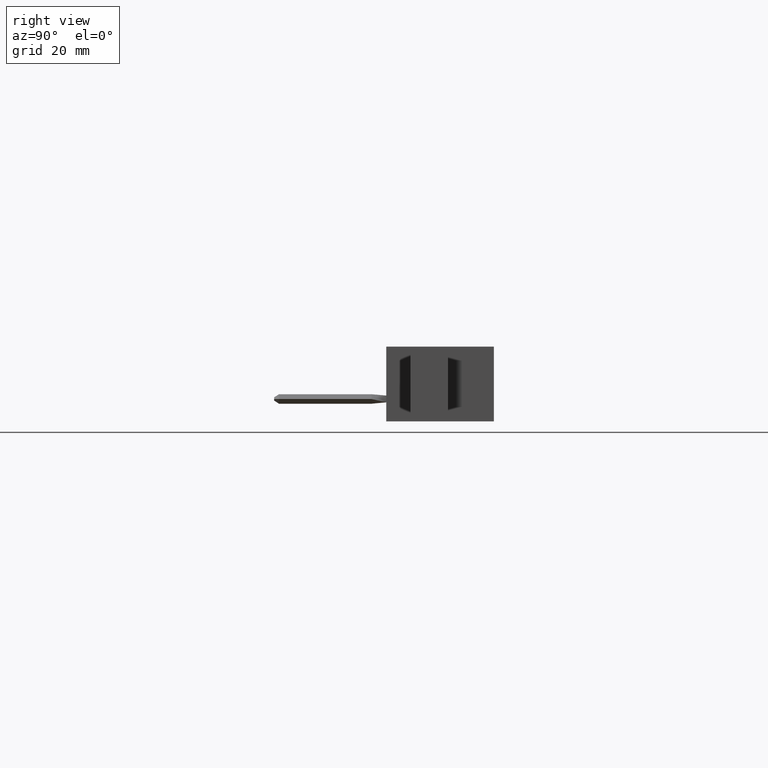
[diagram: clean part render]
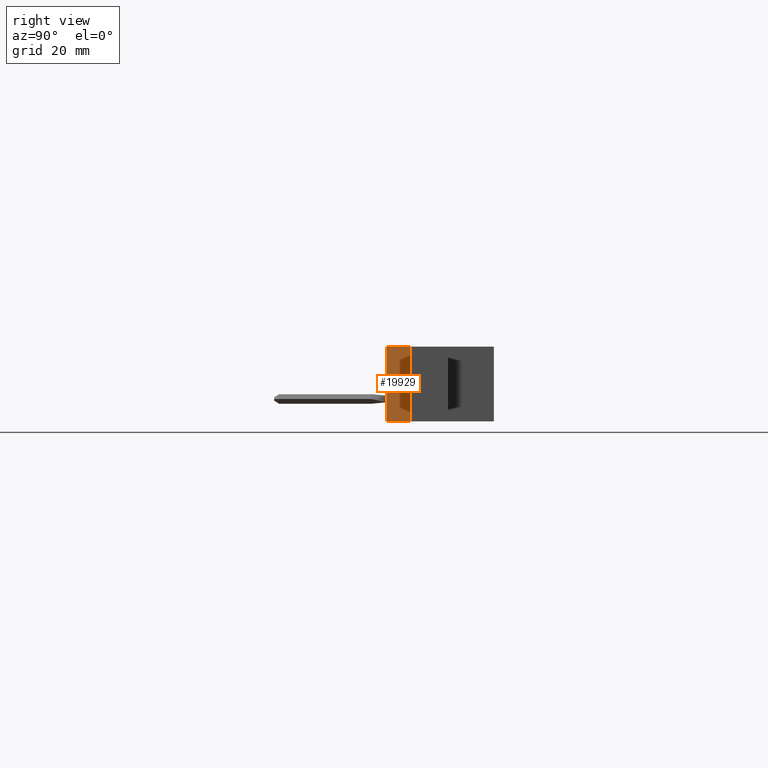
[diagram: same view with one face highlighted and labeled with its STEP entity id]
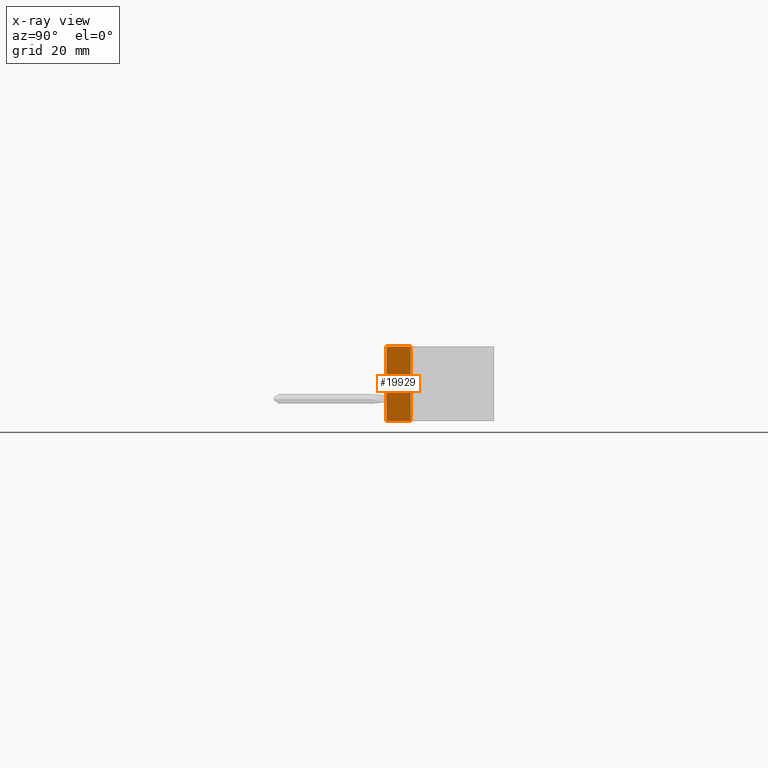
[diagram: x-ray of the same camera — body ghosted, the highlighted face saturated]
A machine part, right view. The second image highlights one B-rep face of the part: STEP entity #19929.
The next image is the same camera in x-ray: the body ghosted, the highlighted face saturated — about 0% of this face is hidden behind the body in this view.
In plain terms, the highlighted planar face has unit normal (-1, 0, 0).
Its self-contained STEP definition (entity closure, byte-faithful):
#261 = EDGE_CURVE ( 'NONE', #30299, #26430, #7786, .T. ) ;
#1256 = LINE ( 'NONE', #11097, #5221 ) ;
#3253 = DIRECTION ( 'NONE',  ( -0.0000000000000000000, -1.000000000000000000, -0.0000000000000000000 ) ) ;
#3946 = VERTEX_POINT ( 'NONE', #5906 ) ;
#4141 = DIRECTION ( 'NONE',  ( -0.0000000000000000000, -1.000000000000000000, -0.0000000000000000000 ) ) ;
#4308 = FACE_OUTER_BOUND ( 'NONE', #24121, .T. ) ;
#4388 = CARTESIAN_POINT ( 'NONE',  ( 4.192999999999999600, 0.1630000000000000100, -0.5000000000000000000 ) ) ;
#4424 = CARTESIAN_POINT ( 'NONE',  ( 4.192999999999999600, 0.1630000000000000100, 0.0000000000000000000 ) ) ;
#4926 = DIRECTION ( 'NONE',  ( 0.0000000000000000000, 0.0000000000000000000, 1.000000000000000000 ) ) ;
#5166 = CARTESIAN_POINT ( 'NONE',  ( 4.192999999999999600, 0.1630000000000000100, -0.4999999999999992200 ) ) ;
#5221 = VECTOR ( 'NONE', #3253, 39.37007874015748100 ) ;
#5648 = CARTESIAN_POINT ( 'NONE',  ( 4.192999999999999600, 0.0000000000000000000, -0.4999999999999992200 ) ) ;
#5906 = CARTESIAN_POINT ( 'NONE',  ( 4.192999999999999600, 0.0000000000000000000, 0.0000000000000000000 ) ) ;
#6373 = LINE ( 'NONE', #5648, #36411 ) ;
#7202 = EDGE_CURVE ( 'NONE', #30299, #3946, #27264, .T. ) ;
#7786 = LINE ( 'NONE', #15336, #20587 ) ;
#9313 = EDGE_CURVE ( 'NONE', #3946, #17677, #6373, .T. ) ;
#11097 = CARTESIAN_POINT ( 'NONE',  ( 4.192999999999999600, 0.1630000000000000100, -0.4999999999999992200 ) ) ;
#12061 = EDGE_CURVE ( 'NONE', #26430, #17677, #1256, .T. ) ;
#14189 = AXIS2_PLACEMENT_3D ( 'NONE', #5166, #24637, #4926 ) ;
#15336 = CARTESIAN_POINT ( 'NONE',  ( 4.192999999999999600, 0.1630000000000000100, -0.4999999999999992200 ) ) ;
#15963 = ORIENTED_EDGE ( 'NONE', *, *, #12061, .F. ) ;
#17293 = ORIENTED_EDGE ( 'NONE', *, *, #261, .F. ) ;
#17677 = VERTEX_POINT ( 'NONE', #30797 ) ;
#19929 = ADVANCED_FACE ( 'NONE', ( #4308 ), #30204, .F. ) ;
#20587 = VECTOR ( 'NONE', #26342, 39.37007874015748100 ) ;
#21132 = CARTESIAN_POINT ( 'NONE',  ( 4.192999999999999600, 0.1630000000000000100, 0.0000000000000000000 ) ) ;
#22421 = VECTOR ( 'NONE', #4141, 39.37007874015748100 ) ;
#23344 = ORIENTED_EDGE ( 'NONE', *, *, #9313, .T. ) ;
#24121 = EDGE_LOOP ( 'NONE', ( #23344, #15963, #17293, #24287 ) ) ;
#24287 = ORIENTED_EDGE ( 'NONE', *, *, #7202, .T. ) ;
#24637 = DIRECTION ( 'NONE',  ( -1.000000000000000000, 0.0000000000000000000, 0.0000000000000000000 ) ) ;
#26342 = DIRECTION ( 'NONE',  ( -0.0000000000000000000, -0.0000000000000000000, -1.000000000000000000 ) ) ;
#26430 = VERTEX_POINT ( 'NONE', #4388 ) ;
#27264 = LINE ( 'NONE', #21132, #22421 ) ;
#30204 = PLANE ( 'NONE',  #14189 ) ;
#30299 = VERTEX_POINT ( 'NONE', #4424 ) ;
#30797 = CARTESIAN_POINT ( 'NONE',  ( 4.192999999999999600, 0.0000000000000000000, -0.4999999999999992200 ) ) ;
#34003 = DIRECTION ( 'NONE',  ( -0.0000000000000000000, -0.0000000000000000000, -1.000000000000000000 ) ) ;
#36411 = VECTOR ( 'NONE', #34003, 39.37007874015748100 ) ;